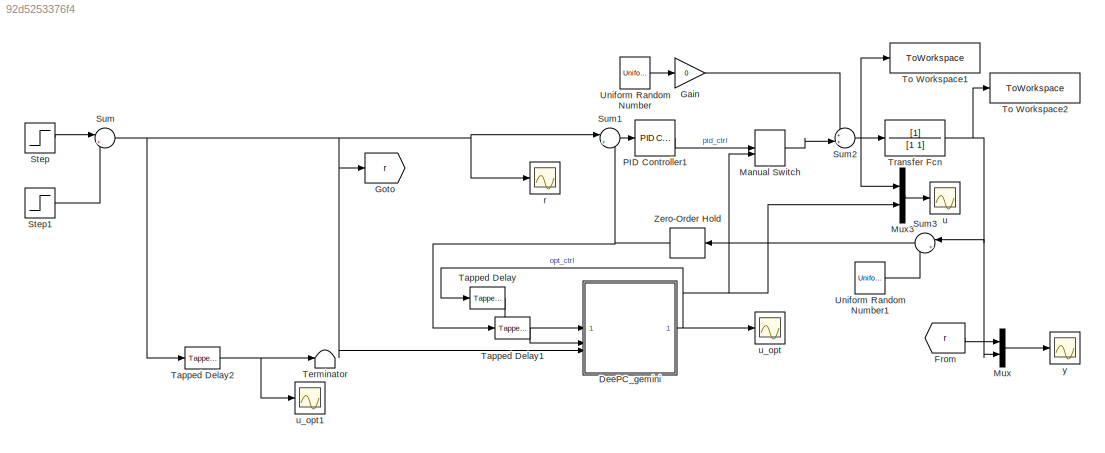
MODEL slx_92d5253376f4
KIND model
CONFIG AbsTol = auto
CONFIG EnableMultiTasking = off
CONFIG FixedStep = 1/1000
CONFIG MaxStep = auto
CONFIG MinStep = auto
CONFIG RelTol = 1e-3
CONFIG SampleTimeConstraint = Unconstrained
CONFIG SolverName = ode5
CONFIG StartTime = 0.0
CONFIG StopTime = 3
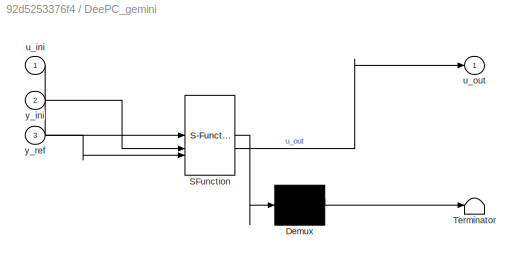
BLOCK [SubSystem] DeePC_gemini
  ErrorFcn = Stateflow.Translate.translate
  PermitHierarchicalResolution = ExplicitOnly
  SFBlockType = MATLAB Function
  TreatAsAtomicUnit = on
BLOCK [Demux] DeePC_gemini/ Demux 
  Outputs = 1
BLOCK [S-Function] DeePC_gemini/ SFunction 
  EnableBusSupport = on
  FunctionName = sf_sfun
  Parameters = Uf,Up,Yf,Yp,lambda,q,r,u_limit
  PortCounts = [3 2]
  SFcnIsStateOwnerBlock = off
  SFunctionDeploymentMode = off
  Tag = Stateflow S-Function 1
BLOCK [Terminator] DeePC_gemini/ Terminator 
BLOCK [Inport] DeePC_gemini/u_ini
BLOCK [Outport] DeePC_gemini/u_out
BLOCK [Inport] DeePC_gemini/y_ini
  Port = 2
BLOCK [Inport] DeePC_gemini/y_ref
  Port = 3
BLOCK [From] From
  GotoTag = r
BLOCK [Gain] Gain
  Gain = 0
BLOCK [Goto] Goto
  GotoTag = r
BLOCK [ManualSwitch] Manual Switch
  CurrentSetting = 0
BLOCK [Mux] Mux
  DisplayOption = bar
  Inputs = 2
BLOCK [Mux] Mux3
  DisplayOption = bar
  Inputs = 2
BLOCK [Reference] PID Controller1  REF=slpidlib/PID Controller
  LibrarySourceBlock = simulink/Continuous/PID Controller
  SourceBlock = slpidlib/PID Controller
  SourceType = PID 1dof
BLOCK [Step] Step
  SampleTime = 1/1000
BLOCK [Step] Step1
  After = -2
  SampleTime = 1/1000
  Time = 2
BLOCK [Sum] Sum
  Inputs = |++
BLOCK [Sum] Sum1
  Inputs = |+-
BLOCK [Sum] Sum2
  Inputs = ++|
BLOCK [Sum] Sum3
  Inputs = |++
  NameLocation = top
BLOCK [Reference] Tapped Delay  REF=simulink/Discrete/Tapped Delay
  SourceBlock = simulink/Discrete/Tapped Delay
  SourceType = Tapped Delay Line
BLOCK [Reference] Tapped Delay1  REF=simulink/Discrete/Tapped Delay
  SourceBlock = simulink/Discrete/Tapped Delay
  SourceType = Tapped Delay Line
BLOCK [Reference] Tapped Delay2  REF=simulink/Discrete/Tapped Delay
  SourceBlock = simulink/Discrete/Tapped Delay
  SourceType = Tapped Delay Line
BLOCK [Terminator] Terminator
BLOCK [ToWorkspace] To Workspace1
  FixptAsFi = on
  MaxDataPoints = inf
  SampleTime = -1
  SaveFormat = Structure With Time
  VariableName = u_simout
BLOCK [ToWorkspace] To Workspace2
  FixptAsFi = on
  MaxDataPoints = inf
  SampleTime = -1
  SaveFormat = Structure With Time
  VariableName = y_simout
BLOCK [TransferFcn] Transfer Fcn
  Denominator = [1 1]
BLOCK [UniformRandomNumber] Uniform Random Number
  Maximum = 0.1
  Minimum = -0.1
  SampleTime = 1/1000
BLOCK [UniformRandomNumber] Uniform Random Number1
  Maximum = 0.1
  Minimum = -0.1
  SampleTime = 1/1000
BLOCK [ZeroOrderHold] Zero-Order Hold
  SampleTime = 1/1000
BLOCK [Scope] r
  Floating = off
  NumInputPorts = 1
  ScopeSpecificationString = Simulink.scopes.TimeScopeBlockCfg('CurrentConfiguration', extmgr.ConfigurationSet(extmgr.Configuration('Core','General UI',true),extmgr.Configuration('Core','Source UI',true),extmgr.Configuration('Sources','WiredSimulink',true,'DataLoggingVariableName','ScopeData1'),extmgr.Configuration('Visuals','Time Domain',true,'SerializedDisplays',{struct('MinYLimReal','-0.24714','MaxYLimReal','1.21661','YLab...<+1524ch>
BLOCK [Scope] u
  Floating = off
  NumInputPorts = 1
  ScopeSpecificationString = Simulink.scopes.TimeScopeBlockCfg('CurrentConfiguration', extmgr.ConfigurationSet(extmgr.Configuration('Core','General UI',true),extmgr.Configuration('Core','Source UI',true),extmgr.Configuration('Sources','WiredSimulink',true),extmgr.Configuration('Visuals','Time Domain',true,'SerializedDisplays',{struct('MinYLimReal','-5.00207','MaxYLimReal','5.00117','YLabelReal','','MinYLimMag','0.00000','MaxY...<+1497ch>
BLOCK [Scope] u_opt
  Floating = off
  NumInputPorts = 1
  ScopeSpecificationString = Simulink.scopes.TimeScopeBlockCfg('CurrentConfiguration', extmgr.ConfigurationSet(extmgr.Configuration('Core','General UI',true),extmgr.Configuration('Core','Source UI',true),extmgr.Configuration('Sources','WiredSimulink',true,'DataLoggingVariableName','ScopeData2'),extmgr.Configuration('Visuals','Time Domain',true,'SerializedDisplays',{struct('MinYLimReal','1.68863','MaxYLimReal','2.72001','YLabe...<+1562ch>
BLOCK [Scope] u_opt1
  Floating = off
  NumInputPorts = 1
  ScopeSpecificationString = Simulink.scopes.TimeScopeBlockCfg('CurrentConfiguration', extmgr.ConfigurationSet(extmgr.Configuration('Core','General UI',true),extmgr.Configuration('Core','Source UI',true),extmgr.Configuration('Sources','WiredSimulink',true,'DataLoggingVariableName','ScopeData2'),extmgr.Configuration('Visuals','Time Domain',true,'SerializedDisplays',{struct('MinYLimReal','-0.09154','MaxYLimReal','1.0602','YLabe...<+2491ch>
BLOCK [Scope] y
  Floating = off
  NumInputPorts = 1
  ScopeSpecificationString = Simulink.scopes.TimeScopeBlockCfg('CurrentConfiguration', extmgr.ConfigurationSet(extmgr.Configuration('Core','General UI',true),extmgr.Configuration('Core','Source UI',true),extmgr.Configuration('Sources','WiredSimulink',true,'DataLoggingVariableName','ScopeData1'),extmgr.Configuration('Visuals','Time Domain',true,'SerializedDisplays',{struct('MinYLimReal','-1.26917','MaxYLimReal','1.27982','YLab...<+1539ch>
NET DeePC_gemini:1 -> Manual Switch:2, Mux3:2, Tapped Delay:1, u_opt:1
LINE From:1 -> Mux:1
LINE Gain:1 -> Sum2:1
LINE Manual Switch:1 -> Sum2:2
LINE Mux3:1 -> u:1
LINE Mux:1 -> y:1
LINE PID Controller1:1 -> Manual Switch:1
LINE Step1:1 -> Sum:2
LINE Step:1 -> Sum:1
LINE Sum1:1 -> PID Controller1:1
NET Sum2:1 -> Mux3:1, To Workspace1:1, Transfer Fcn:1
LINE Sum3:1 -> Zero-Order Hold:1
NET Sum:1 -> DeePC_gemini:3, Goto:1, Sum1:1, Tapped Delay2:1, r:1
LINE Tapped Delay1:1 -> DeePC_gemini:2
NET Tapped Delay2:1 -> Terminator:1, u_opt1:1
LINE Tapped Delay:1 -> DeePC_gemini:1
NET Transfer Fcn:1 -> Mux:2, Sum3:1, To Workspace2:1
LINE Uniform Random Number1:1 -> Sum3:2
LINE Uniform Random Number:1 -> Gain:1
NET Zero-Order Hold:1 -> Sum1:2, Tapped Delay1:1
note: NET lines group one-source signal fan-out (src -> all destinations, sorted); 1:1 wires keep LINE
CHART DeePC_gemini states=1 transitions=1
  STATE_LABEL 'eML_blk_kernel()'
  STATE_LABEL 'SCRIPT:\nfunction u_out = deepc_controller(u_ini, y_ini, y_ref, Up, Yp, Uf, Yf, q, r, lambda, u_limit)\n\n    % u_ini: [Tini*m x 1] \n    % y_ini: [Tini*p x 1]\n    % y_ref: [N*p x 1]\n    % Up, Uf, Yp, Yf: Pre-partitioned Hankel matrices from offline data\n\n    % --- Persistent Variables for Speed ---\n    persistent G_mat x0_warm first_run m p N Tini u_prev u_f_sol Q R du_max du_min A_cons I_vec S\n    \n...<+3608ch>'
CHART  states=0 transitions=0
